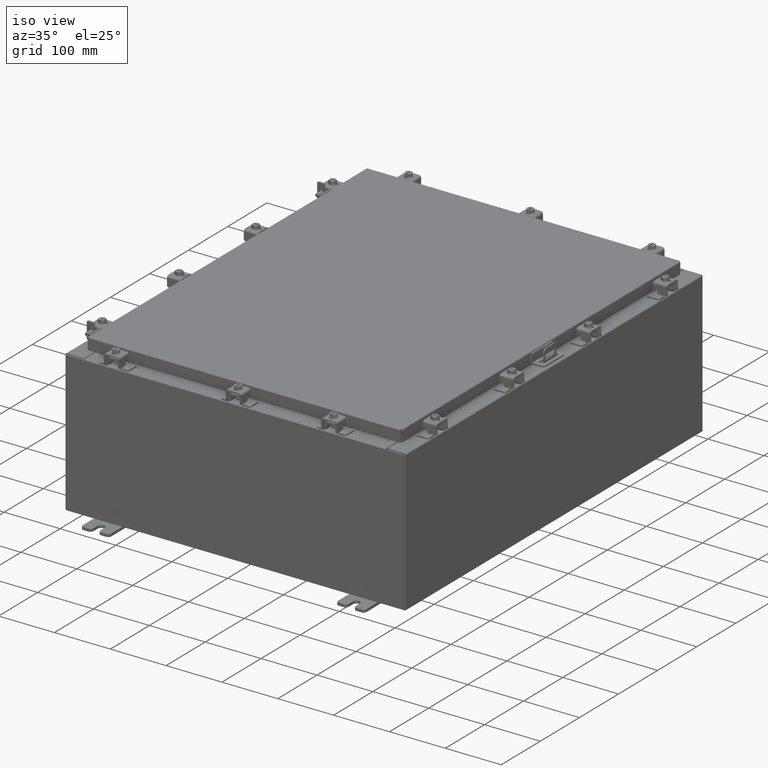
[diagram: clean part render]
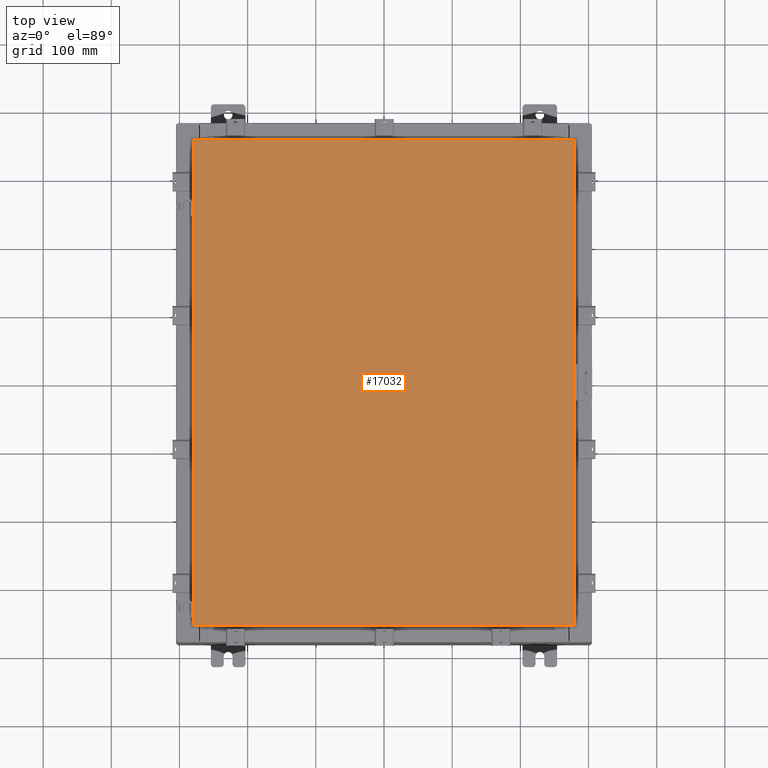
[diagram: tour spotlight — one face highlighted and labeled with its STEP entity id]
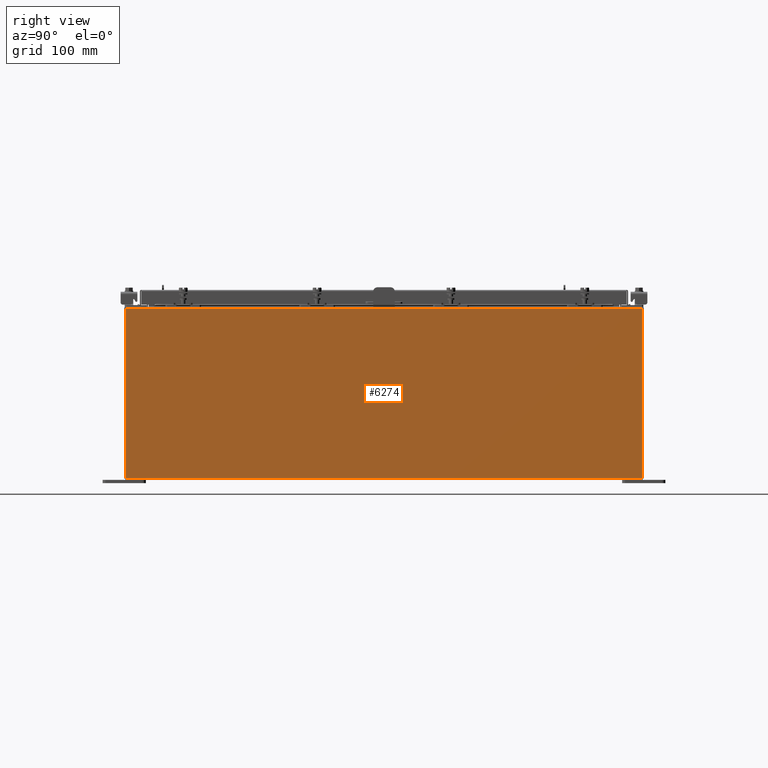
[diagram: tour spotlight — one face highlighted and labeled with its STEP entity id]
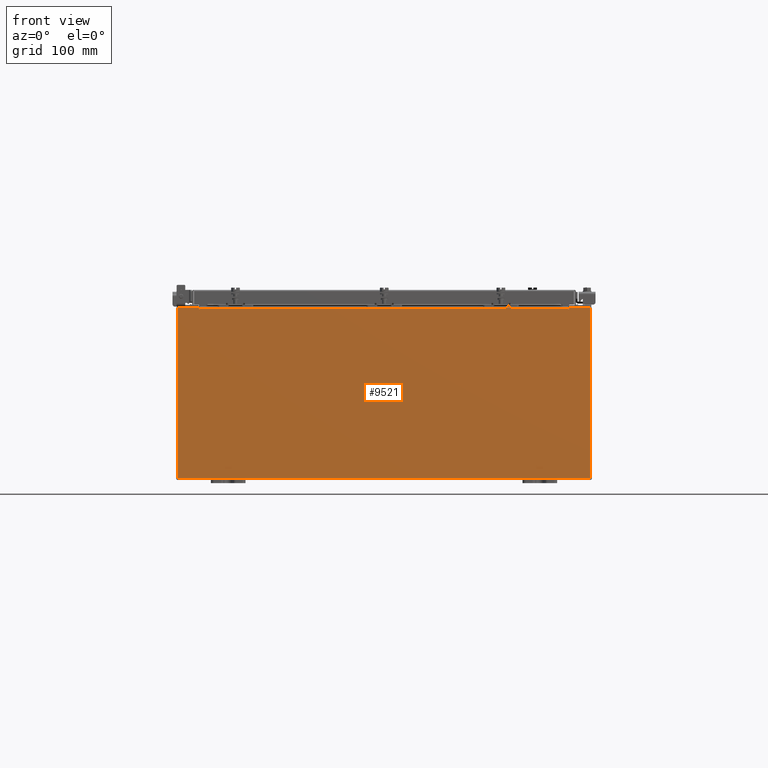
[diagram: tour spotlight — one face highlighted and labeled with its STEP entity id]
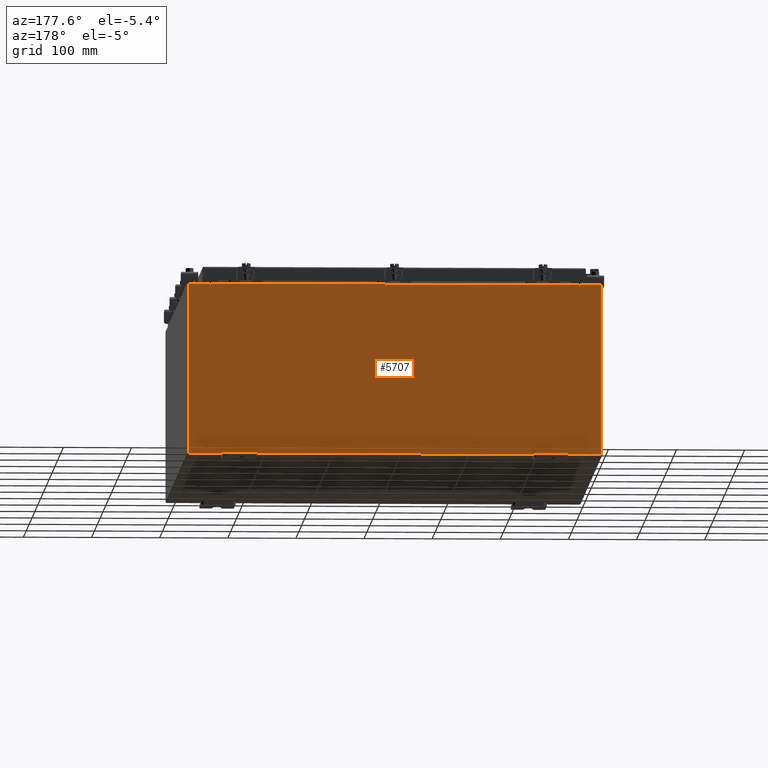
[diagram: tour spotlight — one face highlighted and labeled with its STEP entity id]
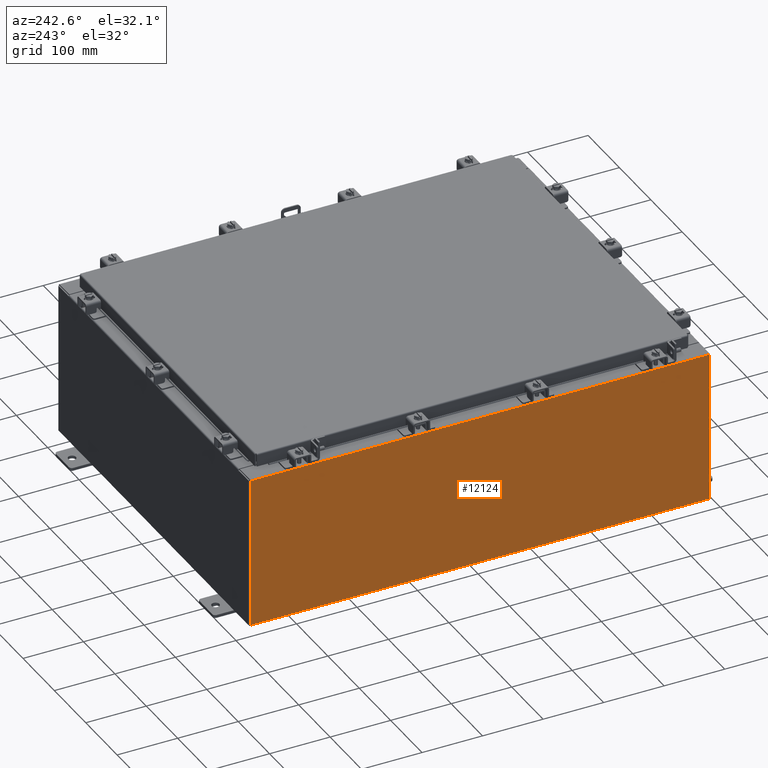
[diagram: tour spotlight — one face highlighted and labeled with its STEP entity id]
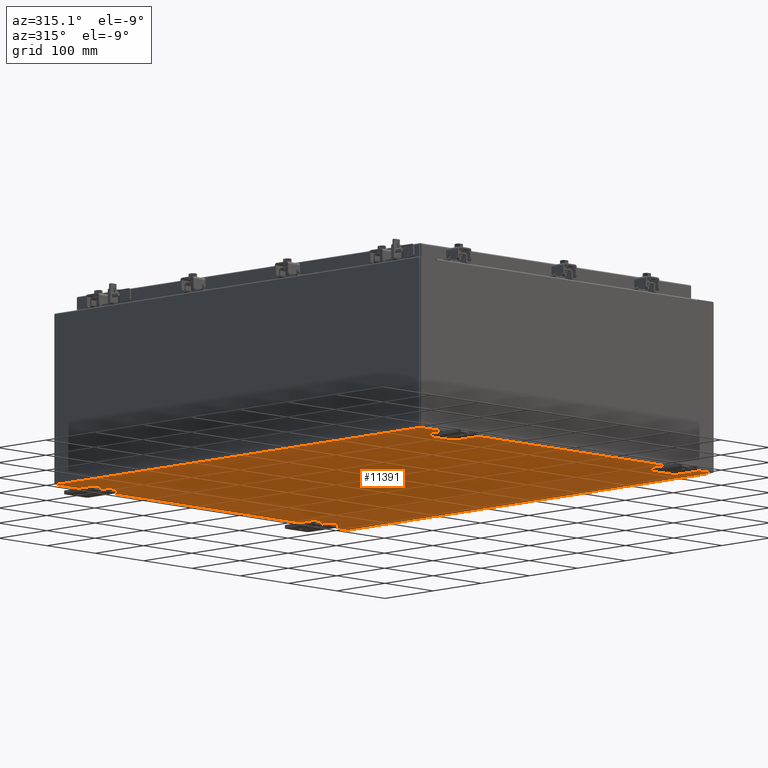
[diagram: tour spotlight — one face highlighted and labeled with its STEP entity id]
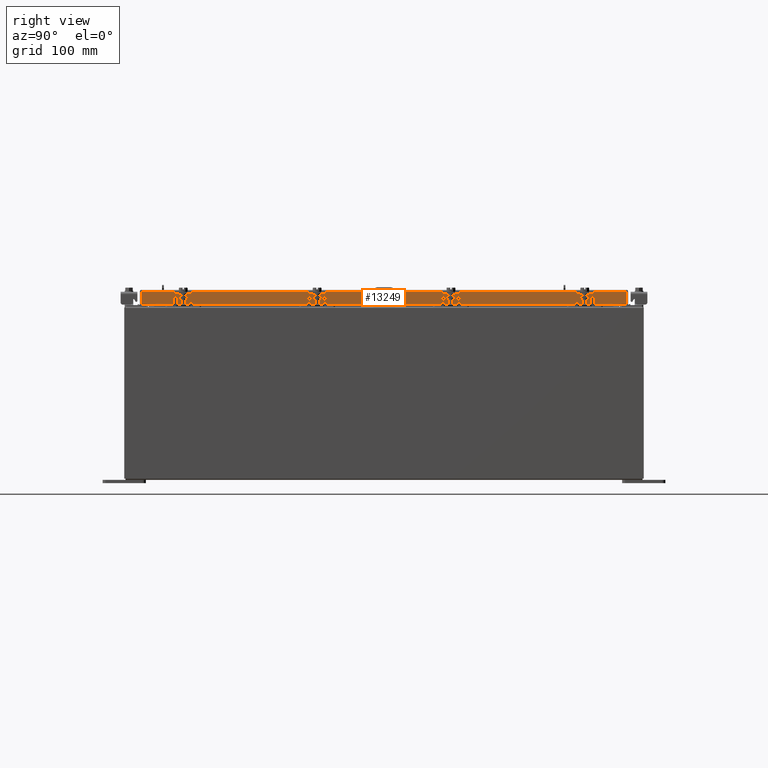
[diagram: tour spotlight — one face highlighted and labeled with its STEP entity id]
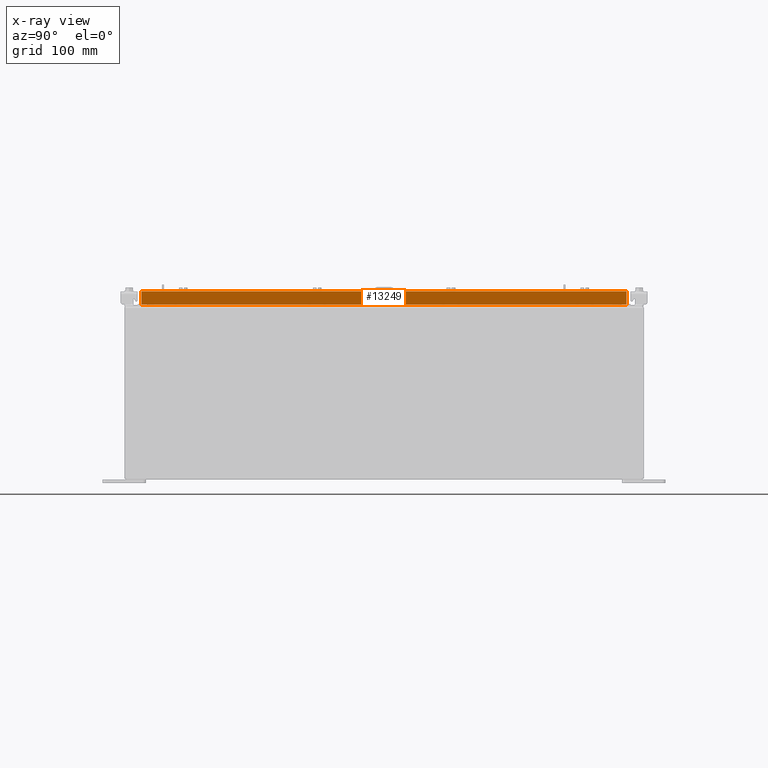
[diagram: x-ray of the same camera — body ghosted, this tour face saturated]
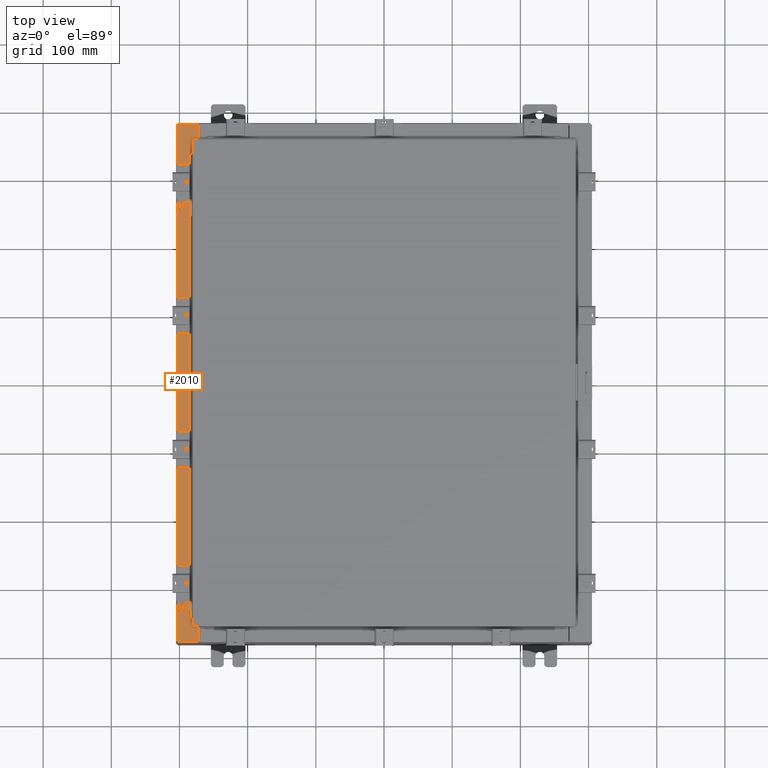
[diagram: tour spotlight — one face highlighted and labeled with its STEP entity id]
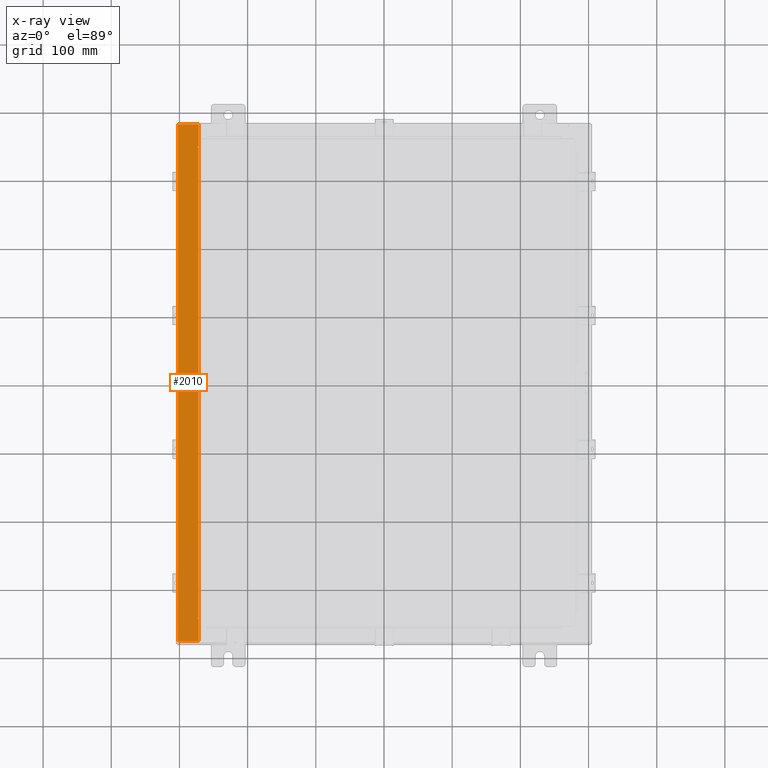
[diagram: x-ray of the same camera — body ghosted, this tour face saturated]
A machine part: a face-by-face anatomy tour. The part has 2272 B-rep faces; the first image is the clean iso view, then the 8 largest visible faces are spotlighted one at a time (largest first), each with its STEP entity span.

Face 1 — top view, entity #17032. In plain terms, the highlighted planar face has unit normal (0, 0, -1).
Definition (entity closure, byte-faithful):
#459 = DIRECTION ( 'NONE',  ( 0.0000000000000000000, -1.000000000000000000, 0.0000000000000000000 ) ) ;
#2598 = CARTESIAN_POINT ( 'NONE',  ( -10.99029999999999600, -14.00629999999999800, -2.219626494852214000E-016 ) ) ;
#3180 = EDGE_LOOP ( 'NONE', ( #3322, #17347, #5760, #13838 ) ) ;
#3322 = ORIENTED_EDGE ( 'NONE', *, *, #20579, .T. ) ;
#3630 = DIRECTION ( 'NONE',  ( 0.0000000000000000000, 0.0000000000000000000, -1.000000000000000000 ) ) ;
#3857 = CARTESIAN_POINT ( 'NONE',  ( 10.99030000000000000, 14.00629999999999800, -2.048885995248197400E-016 ) ) ;
#4446 = DIRECTION ( 'NONE',  ( 1.000000000000000000, -0.0000000000000000000, -0.0000000000000000000 ) ) ;
#5760 = ORIENTED_EDGE ( 'NONE', *, *, #10820, .T. ) ;
#9474 = EDGE_CURVE ( 'NONE', #20600, #12104, #22931, .T. ) ;
#9507 = VECTOR ( 'NONE', #16310, 39.37007874015748100 ) ;
#10820 = EDGE_CURVE ( 'NONE', #11747, #20600, #18465, .T. ) ;
#11251 = CARTESIAN_POINT ( 'NONE',  ( -10.99030000000000000, 14.00630000000000100, -2.048885995248197400E-016 ) ) ;
#11513 = CARTESIAN_POINT ( 'NONE',  ( -10.99030000000000000, 14.00630000000000100, -2.048885995248197400E-016 ) ) ;
#11747 = VERTEX_POINT ( 'NONE', #15502 ) ;
#11920 = AXIS2_PLACEMENT_3D ( 'NONE', #14290, #3630, #16114 ) ;
#11952 = DIRECTION ( 'NONE',  ( 0.0000000000000000000, 1.000000000000000000, 0.0000000000000000000 ) ) ;
#12104 = VERTEX_POINT ( 'NONE', #14783 ) ;
#12368 = EDGE_CURVE ( 'NONE', #14049, #11747, #14778, .T. ) ;
#12515 = PLANE ( 'NONE',  #11920 ) ;
#12599 = LINE ( 'NONE', #2598, #16795 ) ;
#13640 = VECTOR ( 'NONE', #11952, 39.37007874015748100 ) ;
#13838 = ORIENTED_EDGE ( 'NONE', *, *, #9474, .T. ) ;
#14049 = VERTEX_POINT ( 'NONE', #16336 ) ;
#14290 = CARTESIAN_POINT ( 'NONE',  ( 0.0000000000000000000, 0.0000000000000000000, 0.0000000000000000000 ) ) ;
#14778 = LINE ( 'NONE', #22585, #13640 ) ;
#14783 = CARTESIAN_POINT ( 'NONE',  ( -10.99029999999999800, -14.00629999999999800, -2.048885995248197400E-016 ) ) ;
#15502 = CARTESIAN_POINT ( 'NONE',  ( 10.99030000000000000, 14.00629999999999800, -2.048885995248197400E-016 ) ) ;
#16114 = DIRECTION ( 'NONE',  ( -1.000000000000000000, 0.0000000000000000000, -0.0000000000000000000 ) ) ;
#16310 = DIRECTION ( 'NONE',  ( -1.000000000000000000, -0.0000000000000000000, -0.0000000000000000000 ) ) ;
#16336 = CARTESIAN_POINT ( 'NONE',  ( 10.99030000000000000, -14.00629999999999800, -2.048885995248197400E-016 ) ) ;
#16671 = FACE_OUTER_BOUND ( 'NONE', #3180, .T. ) ;
#16795 = VECTOR ( 'NONE', #4446, 39.37007874015748100 ) ;
#17032 = ADVANCED_FACE ( 'NONE', ( #16671 ), #12515, .F. ) ;
#17347 = ORIENTED_EDGE ( 'NONE', *, *, #12368, .T. ) ;
#17691 = VECTOR ( 'NONE', #459, 39.37007874015748100 ) ;
#18465 = LINE ( 'NONE', #3857, #9507 ) ;
#20579 = EDGE_CURVE ( 'NONE', #12104, #14049, #12599, .T. ) ;
#20600 = VERTEX_POINT ( 'NONE', #11513 ) ;
#22585 = CARTESIAN_POINT ( 'NONE',  ( 10.99030000000000000, -14.00629999999999800, -2.048885995248197400E-016 ) ) ;
#22931 = LINE ( 'NONE', #11251, #17691 ) ;

Face 2 — right view, entity #6274. In plain terms, the highlighted planar face has unit normal (-1, 0, 0).
Definition (entity closure, byte-faithful):
#97 = VECTOR ( 'NONE', #15024, 39.37007874015748100 ) ;
#351 = CARTESIAN_POINT ( 'NONE',  ( 11.99999999999999600, -14.92530000000000000, -3.925136619739177700E-014 ) ) ;
#1040 = CARTESIAN_POINT ( 'NONE',  ( 12.00000000000003200, -14.92529999999999800, 9.837600000000001900 ) ) ;
#1900 = EDGE_CURVE ( 'NONE', #8632, #9651, #9154, .T. ) ;
#1926 = CARTESIAN_POINT ( 'NONE',  ( 11.99999999999999600, -14.92530000000000000, 0.01299999999999997500 ) ) ;
#2032 = CARTESIAN_POINT ( 'NONE',  ( 11.99999999999999600, 14.92530000000000000, -3.925136619739177700E-014 ) ) ;
#2417 = AXIS2_PLACEMENT_3D ( 'NONE', #11754, #20636, #2848 ) ;
#2848 = DIRECTION ( 'NONE',  ( 3.523082860860887800E-015, 0.0000000000000000000, 1.000000000000000000 ) ) ;
#3213 = VECTOR ( 'NONE', #16521, 39.37007874015748100 ) ;
#3324 = VECTOR ( 'NONE', #16435, 39.37007874015748100 ) ;
#4808 = ORIENTED_EDGE ( 'NONE', *, *, #1900, .T. ) ;
#6274 = ADVANCED_FACE ( 'NONE', ( #9849 ), #9948, .F. ) ;
#6528 = EDGE_CURVE ( 'NONE', #8632, #10125, #19633, .T. ) ;
#7162 = VERTEX_POINT ( 'NONE', #1040 ) ;
#7294 = DIRECTION ( 'NONE',  ( 2.579385833438731400E-031, -1.000000000000000000, 7.321388497823869400E-017 ) ) ;
#8115 = CARTESIAN_POINT ( 'NONE',  ( 12.00000000000003200, 14.92529999999999800, 9.837599999999994800 ) ) ;
#8511 = LINE ( 'NONE', #351, #3213 ) ;
#8632 = VERTEX_POINT ( 'NONE', #21121 ) ;
#9154 = LINE ( 'NONE', #2032, #3324 ) ;
#9651 = VERTEX_POINT ( 'NONE', #8115 ) ;
#9849 = FACE_OUTER_BOUND ( 'NONE', #19602, .T. ) ;
#9948 = PLANE ( 'NONE',  #2417 ) ;
#10125 = VERTEX_POINT ( 'NONE', #1926 ) ;
#11420 = CARTESIAN_POINT ( 'NONE',  ( 12.00000000000003200, 14.92529999999999800, 9.837599999999994800 ) ) ;
#11754 = CARTESIAN_POINT ( 'NONE',  ( 11.99999999999999600, 0.0000000000000000000, -4.253780798634221600E-014 ) ) ;
#12597 = CARTESIAN_POINT ( 'NONE',  ( 11.99999999999999600, -14.92529999999999800, 0.01299999999999984700 ) ) ;
#15024 = DIRECTION ( 'NONE',  ( -0.0000000000000000000, -1.000000000000000000, -0.0000000000000000000 ) ) ;
#15367 = EDGE_CURVE ( 'NONE', #7162, #10125, #8511, .T. ) ;
#15806 = ORIENTED_EDGE ( 'NONE', *, *, #15367, .T. ) ;
#16195 = ORIENTED_EDGE ( 'NONE', *, *, #6528, .F. ) ;
#16435 = DIRECTION ( 'NONE',  ( 3.523082860860888200E-015, -2.201926788038055100E-016, 1.000000000000000000 ) ) ;
#16521 = DIRECTION ( 'NONE',  ( -3.523082860860888200E-015, -2.201926788038054900E-016, -1.000000000000000000 ) ) ;
#16690 = EDGE_CURVE ( 'NONE', #9651, #7162, #19192, .T. ) ;
#17900 = ORIENTED_EDGE ( 'NONE', *, *, #16690, .T. ) ;
#19072 = VECTOR ( 'NONE', #7294, 39.37007874015748100 ) ;
#19192 = LINE ( 'NONE', #11420, #97 ) ;
#19602 = EDGE_LOOP ( 'NONE', ( #17900, #15806, #16195, #4808 ) ) ;
#19633 = LINE ( 'NONE', #12597, #19072 ) ;
#20636 = DIRECTION ( 'NONE',  ( -1.000000000000000000, 0.0000000000000000000, 3.523082860860887800E-015 ) ) ;
#21121 = CARTESIAN_POINT ( 'NONE',  ( 11.99999999999999600, 14.92529999999999800, 0.01299999999999766100 ) ) ;

Face 3 — front view, entity #9521. In plain terms, the highlighted planar face has unit normal (-0, 1, -0).
Definition (entity closure, byte-faithful):
#7 = DIRECTION ( 'NONE',  ( 1.000000000000000000, 0.0000000000000000000, 0.0000000000000000000 ) ) ;
#120 = EDGE_CURVE ( 'NONE', #6420, #14228, #5009, .T. ) ;
#475 = ORIENTED_EDGE ( 'NONE', *, *, #3072, .F. ) ;
#698 = DIRECTION ( 'NONE',  ( 0.0000000000000000000, -0.0000000000000000000, -1.000000000000000000 ) ) ;
#1128 = CARTESIAN_POINT ( 'NONE',  ( -10.67455000000000200, 0.0000000000000000000, 4.874950000000000100 ) ) ;
#1195 = DIRECTION ( 'NONE',  ( -0.0000000000000000000, 1.000000000000000000, -0.0000000000000000000 ) ) ;
#1309 = ORIENTED_EDGE ( 'NONE', *, *, #120, .T. ) ;
#1412 = ORIENTED_EDGE ( 'NONE', *, *, #4416, .F. ) ;
#1642 = EDGE_CURVE ( 'NONE', #1702, #1821, #9445, .T. ) ;
#1692 = CARTESIAN_POINT ( 'NONE',  ( 10.67455000000000200, 0.0000000000000000000, 4.925300000000000000 ) ) ;
#1702 = VERTEX_POINT ( 'NONE', #1692 ) ;
#1821 = VERTEX_POINT ( 'NONE', #15167 ) ;
#2033 = VERTEX_POINT ( 'NONE', #12820 ) ;
#2645 = AXIS2_PLACEMENT_3D ( 'NONE', #22127, #11473, #698 ) ;
#2677 = VERTEX_POINT ( 'NONE', #10128 ) ;
#3072 = EDGE_CURVE ( 'NONE', #2033, #13731, #7998, .T. ) ;
#3465 = FACE_OUTER_BOUND ( 'NONE', #10725, .T. ) ;
#3504 = CARTESIAN_POINT ( 'NONE',  ( -11.92530000000000000, 0.0000000000000000000, 4.925300000000000000 ) ) ;
#4144 = VECTOR ( 'NONE', #4210, 39.37007874015748100 ) ;
#4210 = DIRECTION ( 'NONE',  ( 0.0000000000000000000, 0.0000000000000000000, 1.000000000000000000 ) ) ;
#4416 = EDGE_CURVE ( 'NONE', #9785, #11579, #8236, .T. ) ;
#4659 = CARTESIAN_POINT ( 'NONE',  ( -10.65587500000000200, 0.0000000000000000000, 4.874950000000000100 ) ) ;
#4992 = CARTESIAN_POINT ( 'NONE',  ( 10.67454999999979000, -0.0000000000000000000, -4.633366117301795800E-013 ) ) ;
#5009 = LINE ( 'NONE', #8147, #9141 ) ;
#5228 = AXIS2_PLACEMENT_3D ( 'NONE', #4659, #17122, #6435 ) ;
#5303 = EDGE_CURVE ( 'NONE', #22618, #2677, #13205, .T. ) ;
#5814 = ORIENTED_EDGE ( 'NONE', *, *, #19306, .T. ) ;
#5822 = CARTESIAN_POINT ( 'NONE',  ( 11.92530000000000000, 0.0000000000000000000, 4.925300000000000000 ) ) ;
#5980 = DIRECTION ( 'NONE',  ( 1.000000000000000000, 0.0000000000000000000, 0.0000000000000000000 ) ) ;
#6420 = VERTEX_POINT ( 'NONE', #10429 ) ;
#6435 = DIRECTION ( 'NONE',  ( 0.0000000000000000000, 0.0000000000000000000, -1.000000000000000000 ) ) ;
#6679 = CARTESIAN_POINT ( 'NONE',  ( -11.92530000000000000, 0.0000000000000000000, 4.925300000000000000 ) ) ;
#6884 = VECTOR ( 'NONE', #20509, 39.37007874015748100 ) ;
#7045 = CARTESIAN_POINT ( 'NONE',  ( -10.67455000000000200, -0.0000000000000000000, 0.0000000000000000000 ) ) ;
#7260 = EDGE_CURVE ( 'NONE', #14228, #7405, #17375, .T. ) ;
#7405 = VERTEX_POINT ( 'NONE', #22995 ) ;
#7454 = VECTOR ( 'NONE', #19230, 39.37007874015748100 ) ;
#7780 = VECTOR ( 'NONE', #7, 39.37007874015748100 ) ;
#7848 = DIRECTION ( 'NONE',  ( -1.000000000000000000, -0.0000000000000000000, -0.0000000000000000000 ) ) ;
#7884 = CARTESIAN_POINT ( 'NONE',  ( -11.92530000000000000, 0.0000000000000000000, -4.925300000000000000 ) ) ;
#7998 = CIRCLE ( 'NONE', #11373, 0.01867499999999949400 ) ;
#8147 = CARTESIAN_POINT ( 'NONE',  ( -11.92530000000000000, 0.0000000000000000000, -4.925300000000000000 ) ) ;
#8236 = LINE ( 'NONE', #20562, #12427 ) ;
#8314 = CARTESIAN_POINT ( 'NONE',  ( 10.63720000000000400, 0.0000000000000000000, 4.874950000000000100 ) ) ;
#8673 = ORIENTED_EDGE ( 'NONE', *, *, #16798, .F. ) ;
#9141 = VECTOR ( 'NONE', #7848, 39.37007874015748100 ) ;
#9445 = LINE ( 'NONE', #3504, #7780 ) ;
#9521 = ADVANCED_FACE ( 'NONE', ( #3465 ), #9676, .F. ) ;
#9639 = ORIENTED_EDGE ( 'NONE', *, *, #1642, .T. ) ;
#9676 = PLANE ( 'NONE',  #2645 ) ;
#9785 = VERTEX_POINT ( 'NONE', #19275 ) ;
#9821 = CARTESIAN_POINT ( 'NONE',  ( -10.63720000000000400, -7.171100983368691200E-016, 4.912300000000000100 ) ) ;
#9871 = ORIENTED_EDGE ( 'NONE', *, *, #5303, .F. ) ;
#9945 = DIRECTION ( 'NONE',  ( 0.0000000000000000000, 0.0000000000000000000, -1.000000000000000000 ) ) ;
#10128 = CARTESIAN_POINT ( 'NONE',  ( -10.67455000000000200, 0.0000000000000000000, 4.925300000000000000 ) ) ;
#10429 = CARTESIAN_POINT ( 'NONE',  ( 11.92530000000000000, 0.0000000000000000000, -4.925300000000000000 ) ) ;
#10725 = EDGE_LOOP ( 'NONE', ( #9871, #8673, #1412, #11068, #12072, #475, #19436, #9639, #15190, #1309, #15658, #5814 ) ) ;
#11068 = ORIENTED_EDGE ( 'NONE', *, *, #17368, .T. ) ;
#11121 = CARTESIAN_POINT ( 'NONE',  ( -10.63720000000000400, -0.0000000000000000000, 4.874950000000000100 ) ) ;
#11259 = CARTESIAN_POINT ( 'NONE',  ( -11.92530000000000000, 0.0000000000000000000, 4.925300000000000000 ) ) ;
#11373 = AXIS2_PLACEMENT_3D ( 'NONE', #17497, #1195, #12267 ) ;
#11473 = DIRECTION ( 'NONE',  ( 0.0000000000000000000, -1.000000000000000000, 0.0000000000000000000 ) ) ;
#11579 = VERTEX_POINT ( 'NONE', #11121 ) ;
#11912 = LINE ( 'NONE', #5822, #20259 ) ;
#12072 = ORIENTED_EDGE ( 'NONE', *, *, #13505, .F. ) ;
#12207 = LINE ( 'NONE', #4992, #7454 ) ;
#12267 = DIRECTION ( 'NONE',  ( 0.0000000000000000000, 0.0000000000000000000, -1.000000000000000000 ) ) ;
#12427 = VECTOR ( 'NONE', #9945, 39.37007874015748100 ) ;
#12820 = CARTESIAN_POINT ( 'NONE',  ( 10.67455000000000200, 0.0000000000000000000, 4.874950000000000100 ) ) ;
#13205 = LINE ( 'NONE', #7045, #17974 ) ;
#13505 = EDGE_CURVE ( 'NONE', #13731, #20227, #17804, .T. ) ;
#13731 = VERTEX_POINT ( 'NONE', #8314 ) ;
#13837 = EDGE_CURVE ( 'NONE', #1702, #2033, #12207, .T. ) ;
#14138 = EDGE_CURVE ( 'NONE', #1821, #6420, #11912, .T. ) ;
#14228 = VERTEX_POINT ( 'NONE', #7884 ) ;
#14779 = DIRECTION ( 'NONE',  ( 0.0000000000000000000, 0.0000000000000000000, -1.000000000000000000 ) ) ;
#15167 = CARTESIAN_POINT ( 'NONE',  ( 11.92530000000000000, 0.0000000000000000000, 4.925300000000000000 ) ) ;
#15190 = ORIENTED_EDGE ( 'NONE', *, *, #14138, .T. ) ;
#15454 = VECTOR ( 'NONE', #5980, 39.37007874015748100 ) ;
#15567 = DIRECTION ( 'NONE',  ( -0.0000000000000000000, -0.0000000000000000000, 1.000000000000000000 ) ) ;
#15658 = ORIENTED_EDGE ( 'NONE', *, *, #7260, .T. ) ;
#16379 = LINE ( 'NONE', #9821, #6884 ) ;
#16679 = CARTESIAN_POINT ( 'NONE',  ( 10.63720000000000400, 0.0000000000000000000, 0.0000000000000000000 ) ) ;
#16798 = EDGE_CURVE ( 'NONE', #11579, #22618, #17523, .T. ) ;
#16810 = VECTOR ( 'NONE', #15567, 39.37007874015748100 ) ;
#17122 = DIRECTION ( 'NONE',  ( -0.0000000000000000000, 1.000000000000000000, -0.0000000000000000000 ) ) ;
#17368 = EDGE_CURVE ( 'NONE', #9785, #20227, #16379, .T. ) ;
#17375 = LINE ( 'NONE', #6679, #16810 ) ;
#17497 = CARTESIAN_POINT ( 'NONE',  ( 10.65587500000000200, 0.0000000000000000000, 4.874950000000000100 ) ) ;
#17523 = CIRCLE ( 'NONE', #5228, 0.01867499999999949400 ) ;
#17804 = LINE ( 'NONE', #16679, #4144 ) ;
#17974 = VECTOR ( 'NONE', #23062, 39.37007874015748100 ) ;
#19105 = CARTESIAN_POINT ( 'NONE',  ( 10.63720000000000400, 0.0000000000000000000, 4.912300000000000100 ) ) ;
#19230 = DIRECTION ( 'NONE',  ( -4.340572780400004900E-014, 0.0000000000000000000, -1.000000000000000000 ) ) ;
#19275 = CARTESIAN_POINT ( 'NONE',  ( -10.63720000000000400, -7.171100983368691200E-016, 4.912300000000000100 ) ) ;
#19306 = EDGE_CURVE ( 'NONE', #7405, #2677, #20183, .T. ) ;
#19436 = ORIENTED_EDGE ( 'NONE', *, *, #13837, .F. ) ;
#20183 = LINE ( 'NONE', #11259, #15454 ) ;
#20227 = VERTEX_POINT ( 'NONE', #19105 ) ;
#20259 = VECTOR ( 'NONE', #14779, 39.37007874015748100 ) ;
#20509 = DIRECTION ( 'NONE',  ( 1.000000000000000000, 0.0000000000000000000, 0.0000000000000000000 ) ) ;
#20562 = CARTESIAN_POINT ( 'NONE',  ( -10.63720000000000400, -0.0000000000000000000, 0.0000000000000000000 ) ) ;
#22127 = CARTESIAN_POINT ( 'NONE',  ( 0.0000000000000000000, 0.0000000000000000000, 0.0000000000000000000 ) ) ;
#22618 = VERTEX_POINT ( 'NONE', #1128 ) ;
#22995 = CARTESIAN_POINT ( 'NONE',  ( -11.92530000000000000, 0.0000000000000000000, 4.925300000000000000 ) ) ;
#23062 = DIRECTION ( 'NONE',  ( 0.0000000000000000000, 0.0000000000000000000, 1.000000000000000000 ) ) ;

Face 4 — auxiliary view, entity #5707. In plain terms, the highlighted planar face has unit normal (0, -1, 0).
Definition (entity closure, byte-faithful):
#263 = EDGE_CURVE ( 'NONE', #13835, #3344, #20578, .T. ) ;
#468 = VECTOR ( 'NONE', #651, 39.37007874015748100 ) ;
#575 = CARTESIAN_POINT ( 'NONE',  ( -11.92530000000000000, 0.0000000000000000000, -4.925300000000000000 ) ) ;
#651 = DIRECTION ( 'NONE',  ( -1.000000000000000000, -0.0000000000000000000, -0.0000000000000000000 ) ) ;
#1103 = ORIENTED_EDGE ( 'NONE', *, *, #19802, .F. ) ;
#1162 = EDGE_CURVE ( 'NONE', #9263, #2900, #16186, .T. ) ;
#1315 = ORIENTED_EDGE ( 'NONE', *, *, #1993, .T. ) ;
#1993 = EDGE_CURVE ( 'NONE', #21340, #19776, #6379, .T. ) ;
#2078 = ORIENTED_EDGE ( 'NONE', *, *, #13070, .F. ) ;
#2263 = ORIENTED_EDGE ( 'NONE', *, *, #22943, .F. ) ;
#2873 = PLANE ( 'NONE',  #4554 ) ;
#2900 = VERTEX_POINT ( 'NONE', #20786 ) ;
#3169 = CARTESIAN_POINT ( 'NONE',  ( 10.67454999999979000, -0.0000000000000000000, -4.633366117301795800E-013 ) ) ;
#3179 = VECTOR ( 'NONE', #15724, 39.37007874015748100 ) ;
#3224 = DIRECTION ( 'NONE',  ( -4.340572780400004900E-014, 0.0000000000000000000, -1.000000000000000000 ) ) ;
#3344 = VERTEX_POINT ( 'NONE', #6080 ) ;
#3436 = CARTESIAN_POINT ( 'NONE',  ( -11.92530000000000000, 0.0000000000000000000, -4.925300000000000000 ) ) ;
#3710 = ORIENTED_EDGE ( 'NONE', *, *, #263, .F. ) ;
#3775 = CARTESIAN_POINT ( 'NONE',  ( 10.63720000000000400, 0.0000000000000000000, 0.0000000000000000000 ) ) ;
#4386 = CARTESIAN_POINT ( 'NONE',  ( 10.65587500000000200, 0.0000000000000000000, 4.874950000000000100 ) ) ;
#4554 = AXIS2_PLACEMENT_3D ( 'NONE', #20658, #15368, #4702 ) ;
#4702 = DIRECTION ( 'NONE',  ( 0.0000000000000000000, -0.0000000000000000000, -1.000000000000000000 ) ) ;
#4813 = CARTESIAN_POINT ( 'NONE',  ( 10.63720000000000400, 0.0000000000000000000, 4.874950000000000100 ) ) ;
#4872 = CIRCLE ( 'NONE', #6098, 0.01867499999999949400 ) ;
#4939 = CARTESIAN_POINT ( 'NONE',  ( -11.92530000000000000, 0.0000000000000000000, 4.925300000000000000 ) ) ;
#5066 = CARTESIAN_POINT ( 'NONE',  ( -11.92530000000000000, 0.0000000000000000000, 4.925300000000000000 ) ) ;
#5707 = ADVANCED_FACE ( 'NONE', ( #19068 ), #2873, .F. ) ;
#6063 = CIRCLE ( 'NONE', #20272, 0.01867499999999949400 ) ;
#6080 = CARTESIAN_POINT ( 'NONE',  ( 10.67455000000000200, 0.0000000000000000000, 4.874950000000000100 ) ) ;
#6098 = AXIS2_PLACEMENT_3D ( 'NONE', #4386, #16845, #6159 ) ;
#6143 = LINE ( 'NONE', #22764, #20920 ) ;
#6159 = DIRECTION ( 'NONE',  ( 0.0000000000000000000, 0.0000000000000000000, -1.000000000000000000 ) ) ;
#6273 = CARTESIAN_POINT ( 'NONE',  ( -10.67455000000000200, 0.0000000000000000000, 4.874950000000000100 ) ) ;
#6379 = LINE ( 'NONE', #6871, #11117 ) ;
#6418 = VECTOR ( 'NONE', #10774, 39.37007874015748100 ) ;
#6755 = DIRECTION ( 'NONE',  ( -0.0000000000000000000, -0.0000000000000000000, 1.000000000000000000 ) ) ;
#6778 = DIRECTION ( 'NONE',  ( 1.000000000000000000, 0.0000000000000000000, 0.0000000000000000000 ) ) ;
#6871 = CARTESIAN_POINT ( 'NONE',  ( -10.63720000000000400, -7.171100983368691200E-016, 4.912300000000000100 ) ) ;
#7115 = CARTESIAN_POINT ( 'NONE',  ( 10.63720000000000400, 0.0000000000000000000, 4.912300000000000100 ) ) ;
#7208 = VERTEX_POINT ( 'NONE', #4813 ) ;
#7583 = CARTESIAN_POINT ( 'NONE',  ( -10.65587500000000200, 0.0000000000000000000, 4.874950000000000100 ) ) ;
#7953 = ORIENTED_EDGE ( 'NONE', *, *, #18000, .T. ) ;
#8092 = CARTESIAN_POINT ( 'NONE',  ( 11.92530000000000000, 0.0000000000000000000, 4.925300000000000000 ) ) ;
#8301 = EDGE_CURVE ( 'NONE', #3344, #7208, #4872, .T. ) ;
#9197 = EDGE_CURVE ( 'NONE', #13835, #19355, #17414, .T. ) ;
#9263 = VERTEX_POINT ( 'NONE', #10554 ) ;
#9363 = DIRECTION ( 'NONE',  ( 0.0000000000000000000, 0.0000000000000000000, -1.000000000000000000 ) ) ;
#9883 = DIRECTION ( 'NONE',  ( 0.0000000000000000000, 0.0000000000000000000, -1.000000000000000000 ) ) ;
#10118 = CARTESIAN_POINT ( 'NONE',  ( -10.67455000000000200, -0.0000000000000000000, 0.0000000000000000000 ) ) ;
#10554 = CARTESIAN_POINT ( 'NONE',  ( -11.92530000000000000, 0.0000000000000000000, 4.925300000000000000 ) ) ;
#10765 = VERTEX_POINT ( 'NONE', #16020 ) ;
#10774 = DIRECTION ( 'NONE',  ( 0.0000000000000000000, 0.0000000000000000000, -1.000000000000000000 ) ) ;
#11019 = VERTEX_POINT ( 'NONE', #20262 ) ;
#11038 = LINE ( 'NONE', #8092, #15234 ) ;
#11117 = VECTOR ( 'NONE', #19270, 39.37007874015748100 ) ;
#11386 = VECTOR ( 'NONE', #11930, 39.37007874015748100 ) ;
#11657 = VECTOR ( 'NONE', #3224, 39.37007874015748100 ) ;
#11707 = LINE ( 'NONE', #17884, #6418 ) ;
#11799 = LINE ( 'NONE', #3775, #12370 ) ;
#11930 = DIRECTION ( 'NONE',  ( 0.0000000000000000000, 0.0000000000000000000, 1.000000000000000000 ) ) ;
#12370 = VECTOR ( 'NONE', #14436, 39.37007874015748100 ) ;
#12975 = ORIENTED_EDGE ( 'NONE', *, *, #8301, .F. ) ;
#13070 = EDGE_CURVE ( 'NONE', #21344, #2900, #17259, .T. ) ;
#13835 = VERTEX_POINT ( 'NONE', #20926 ) ;
#14365 = ORIENTED_EDGE ( 'NONE', *, *, #9197, .T. ) ;
#14436 = DIRECTION ( 'NONE',  ( 0.0000000000000000000, 0.0000000000000000000, 1.000000000000000000 ) ) ;
#14813 = LINE ( 'NONE', #575, #468 ) ;
#14831 = ORIENTED_EDGE ( 'NONE', *, *, #17154, .F. ) ;
#15234 = VECTOR ( 'NONE', #9883, 39.37007874015748100 ) ;
#15368 = DIRECTION ( 'NONE',  ( 0.0000000000000000000, -1.000000000000000000, 0.0000000000000000000 ) ) ;
#15724 = DIRECTION ( 'NONE',  ( 1.000000000000000000, 0.0000000000000000000, 0.0000000000000000000 ) ) ;
#15756 = ORIENTED_EDGE ( 'NONE', *, *, #22453, .T. ) ;
#16020 = CARTESIAN_POINT ( 'NONE',  ( 11.92530000000000000, 0.0000000000000000000, -4.925300000000000000 ) ) ;
#16186 = LINE ( 'NONE', #4939, #21473 ) ;
#16845 = DIRECTION ( 'NONE',  ( -0.0000000000000000000, 1.000000000000000000, -0.0000000000000000000 ) ) ;
#16957 = CARTESIAN_POINT ( 'NONE',  ( -10.63720000000000400, -7.171100983368691200E-016, 4.912300000000000100 ) ) ;
#17154 = EDGE_CURVE ( 'NONE', #11019, #21344, #6063, .T. ) ;
#17259 = LINE ( 'NONE', #10118, #11386 ) ;
#17414 = LINE ( 'NONE', #5066, #3179 ) ;
#17528 = ORIENTED_EDGE ( 'NONE', *, *, #1162, .T. ) ;
#17884 = CARTESIAN_POINT ( 'NONE',  ( -10.63720000000000400, -0.0000000000000000000, 0.0000000000000000000 ) ) ;
#18000 = EDGE_CURVE ( 'NONE', #19355, #10765, #11038, .T. ) ;
#18253 = VERTEX_POINT ( 'NONE', #3436 ) ;
#19068 = FACE_OUTER_BOUND ( 'NONE', #22933, .T. ) ;
#19270 = DIRECTION ( 'NONE',  ( 1.000000000000000000, 0.0000000000000000000, 0.0000000000000000000 ) ) ;
#19355 = VERTEX_POINT ( 'NONE', #20293 ) ;
#19776 = VERTEX_POINT ( 'NONE', #7115 ) ;
#19802 = EDGE_CURVE ( 'NONE', #7208, #19776, #11799, .T. ) ;
#20048 = DIRECTION ( 'NONE',  ( -0.0000000000000000000, 1.000000000000000000, -0.0000000000000000000 ) ) ;
#20262 = CARTESIAN_POINT ( 'NONE',  ( -10.63720000000000400, -0.0000000000000000000, 4.874950000000000100 ) ) ;
#20272 = AXIS2_PLACEMENT_3D ( 'NONE', #7583, #20048, #9363 ) ;
#20293 = CARTESIAN_POINT ( 'NONE',  ( 11.92530000000000000, 0.0000000000000000000, 4.925300000000000000 ) ) ;
#20578 = LINE ( 'NONE', #3169, #11657 ) ;
#20658 = CARTESIAN_POINT ( 'NONE',  ( 0.0000000000000000000, 0.0000000000000000000, 0.0000000000000000000 ) ) ;
#20786 = CARTESIAN_POINT ( 'NONE',  ( -10.67455000000000200, 0.0000000000000000000, 4.925300000000000000 ) ) ;
#20920 = VECTOR ( 'NONE', #6755, 39.37007874015748100 ) ;
#20926 = CARTESIAN_POINT ( 'NONE',  ( 10.67455000000000200, 0.0000000000000000000, 4.925300000000000000 ) ) ;
#21340 = VERTEX_POINT ( 'NONE', #16957 ) ;
#21344 = VERTEX_POINT ( 'NONE', #6273 ) ;
#21473 = VECTOR ( 'NONE', #6778, 39.37007874015748100 ) ;
#22349 = ORIENTED_EDGE ( 'NONE', *, *, #22735, .T. ) ;
#22453 = EDGE_CURVE ( 'NONE', #10765, #18253, #14813, .T. ) ;
#22735 = EDGE_CURVE ( 'NONE', #18253, #9263, #6143, .T. ) ;
#22764 = CARTESIAN_POINT ( 'NONE',  ( -11.92530000000000000, 0.0000000000000000000, 4.925300000000000000 ) ) ;
#22933 = EDGE_LOOP ( 'NONE', ( #2078, #14831, #2263, #1315, #1103, #12975, #3710, #14365, #7953, #15756, #22349, #17528 ) ) ;
#22943 = EDGE_CURVE ( 'NONE', #21340, #11019, #11707, .T. ) ;

Face 5 — auxiliary view, entity #12124. In plain terms, the highlighted planar face has unit normal (1, 0, 0).
Definition (entity closure, byte-faithful):
#264 = CARTESIAN_POINT ( 'NONE',  ( -12.00000000000000500, 14.92530000000000000, 0.01299999999999984300 ) ) ;
#471 = CARTESIAN_POINT ( 'NONE',  ( -12.00000000000000500, 0.0000000000000000000, -4.253780798634224700E-014 ) ) ;
#706 = EDGE_CURVE ( 'NONE', #22859, #15334, #11444, .T. ) ;
#1808 = CARTESIAN_POINT ( 'NONE',  ( -12.00000000000000500, -14.92530000000000000, -4.253780798634224700E-014 ) ) ;
#2333 = PLANE ( 'NONE',  #8269 ) ;
#2471 = CARTESIAN_POINT ( 'NONE',  ( -12.00000000000000500, 14.92530000000000000, 0.01299999999999984700 ) ) ;
#2632 = ORIENTED_EDGE ( 'NONE', *, *, #13409, .T. ) ;
#2652 = CARTESIAN_POINT ( 'NONE',  ( -12.00000000000000500, -14.92530000000000000, 0.01299999999999984700 ) ) ;
#2735 = EDGE_CURVE ( 'NONE', #10372, #22147, #16688, .T. ) ;
#3695 = VECTOR ( 'NONE', #13260, 39.37007874015748100 ) ;
#4066 = CARTESIAN_POINT ( 'NONE',  ( -12.00000000000004100, -14.92530000000000000, 9.837599999999998300 ) ) ;
#7085 = CARTESIAN_POINT ( 'NONE',  ( -12.00000000000000500, 14.92530000000000000, -4.253780798634224700E-014 ) ) ;
#7745 = EDGE_CURVE ( 'NONE', #10372, #15334, #23153, .T. ) ;
#8269 = AXIS2_PLACEMENT_3D ( 'NONE', #471, #12979, #14855 ) ;
#10230 = DIRECTION ( 'NONE',  ( -3.523082860860888200E-015, 0.0000000000000000000, 1.000000000000000000 ) ) ;
#10372 = VERTEX_POINT ( 'NONE', #2652 ) ;
#11444 = LINE ( 'NONE', #7085, #15650 ) ;
#11933 = VECTOR ( 'NONE', #10230, 39.37007874015748100 ) ;
#12124 = ADVANCED_FACE ( 'NONE', ( #13353 ), #2333, .F. ) ;
#12916 = DIRECTION ( 'NONE',  ( 0.0000000000000000000, 1.000000000000000000, 0.0000000000000000000 ) ) ;
#12979 = DIRECTION ( 'NONE',  ( 1.000000000000000000, 0.0000000000000000000, 3.523082860860887800E-015 ) ) ;
#13260 = DIRECTION ( 'NONE',  ( -0.0000000000000000000, 1.000000000000000000, -0.0000000000000000000 ) ) ;
#13353 = FACE_OUTER_BOUND ( 'NONE', #14108, .T. ) ;
#13409 = EDGE_CURVE ( 'NONE', #22147, #22859, #14164, .T. ) ;
#14108 = EDGE_LOOP ( 'NONE', ( #2632, #14631, #16445, #14920 ) ) ;
#14164 = LINE ( 'NONE', #4066, #18906 ) ;
#14631 = ORIENTED_EDGE ( 'NONE', *, *, #706, .T. ) ;
#14855 = DIRECTION ( 'NONE',  ( 3.523082860860887800E-015, 0.0000000000000000000, -1.000000000000000000 ) ) ;
#14920 = ORIENTED_EDGE ( 'NONE', *, *, #2735, .T. ) ;
#15334 = VERTEX_POINT ( 'NONE', #264 ) ;
#15650 = VECTOR ( 'NONE', #21497, 39.37007874015748100 ) ;
#16445 = ORIENTED_EDGE ( 'NONE', *, *, #7745, .F. ) ;
#16688 = LINE ( 'NONE', #1808, #11933 ) ;
#18906 = VECTOR ( 'NONE', #12916, 39.37007874015748100 ) ;
#20816 = CARTESIAN_POINT ( 'NONE',  ( -12.00000000000004100, -14.92530000000000000, 9.837599999999998300 ) ) ;
#21497 = DIRECTION ( 'NONE',  ( 3.523082860860888200E-015, 0.0000000000000000000, -1.000000000000000000 ) ) ;
#22147 = VERTEX_POINT ( 'NONE', #20816 ) ;
#22859 = VERTEX_POINT ( 'NONE', #23069 ) ;
#23069 = CARTESIAN_POINT ( 'NONE',  ( -12.00000000000004100, 14.92530000000000000, 9.837599999999998300 ) ) ;
#23153 = LINE ( 'NONE', #2471, #3695 ) ;

Face 6 — auxiliary view, entity #11391. In plain terms, the highlighted planar face has unit normal (0, 0, -1).
Definition (entity closure, byte-faithful):
#682 = LINE ( 'NONE', #10207, #19204 ) ;
#941 = CARTESIAN_POINT ( 'NONE',  ( -12.00000000000000500, -14.92530000000000000, -0.07470000000000000300 ) ) ;
#958 = LINE ( 'NONE', #14410, #19480 ) ;
#4945 = DIRECTION ( 'NONE',  ( -0.0000000000000000000, -1.000000000000000000, 8.208677865577646300E-017 ) ) ;
#5268 = CARTESIAN_POINT ( 'NONE',  ( -11.91230000000000500, 14.92530000000000000, -0.07470000000000000300 ) ) ;
#5314 = CARTESIAN_POINT ( 'NONE',  ( 0.0000000000000000000, 0.0000000000000000000, -0.07470000000000000300 ) ) ;
#5778 = DIRECTION ( 'NONE',  ( -1.000000000000000000, -0.0000000000000000000, -0.0000000000000000000 ) ) ;
#6487 = CARTESIAN_POINT ( 'NONE',  ( -11.91230000000000500, -14.92530000000000000, -0.07469999999999994700 ) ) ;
#7081 = DIRECTION ( 'NONE',  ( 0.0000000000000000000, 0.0000000000000000000, -1.000000000000000000 ) ) ;
#7626 = CARTESIAN_POINT ( 'NONE',  ( 11.91229999999999700, 14.92530000000000000, -0.07470000000000226500 ) ) ;
#7838 = EDGE_CURVE ( 'NONE', #9689, #16317, #16232, .T. ) ;
#8660 = LINE ( 'NONE', #9314, #22840 ) ;
#9314 = CARTESIAN_POINT ( 'NONE',  ( -11.91230000000000500, -14.92530000000000000, -0.07469999999999994700 ) ) ;
#9391 = DIRECTION ( 'NONE',  ( -0.0000000000000000000, 1.000000000000000000, -0.0000000000000000000 ) ) ;
#9689 = VERTEX_POINT ( 'NONE', #6487 ) ;
#10207 = CARTESIAN_POINT ( 'NONE',  ( 11.91229999999999700, 14.92530000000000000, -0.07470000000000226500 ) ) ;
#10380 = ORIENTED_EDGE ( 'NONE', *, *, #13144, .T. ) ;
#11391 = ADVANCED_FACE ( 'NONE', ( #13118 ), #15990, .T. ) ;
#11582 = EDGE_CURVE ( 'NONE', #9689, #17671, #8660, .T. ) ;
#12290 = ORIENTED_EDGE ( 'NONE', *, *, #13398, .F. ) ;
#12709 = EDGE_LOOP ( 'NONE', ( #22517, #19996, #12290, #10380 ) ) ;
#13118 = FACE_OUTER_BOUND ( 'NONE', #12709, .T. ) ;
#13144 = EDGE_CURVE ( 'NONE', #20455, #16317, #682, .T. ) ;
#13398 = EDGE_CURVE ( 'NONE', #20455, #17671, #958, .T. ) ;
#14410 = CARTESIAN_POINT ( 'NONE',  ( -12.00000000000000500, 14.92530000000000000, -0.07470000000000000300 ) ) ;
#15299 = DIRECTION ( 'NONE',  ( 1.000000000000000000, 0.0000000000000000000, 0.0000000000000000000 ) ) ;
#15584 = AXIS2_PLACEMENT_3D ( 'NONE', #5314, #7081, #19566 ) ;
#15990 = PLANE ( 'NONE',  #15584 ) ;
#16232 = LINE ( 'NONE', #941, #20387 ) ;
#16317 = VERTEX_POINT ( 'NONE', #22864 ) ;
#17671 = VERTEX_POINT ( 'NONE', #5268 ) ;
#19204 = VECTOR ( 'NONE', #4945, 39.37007874015748100 ) ;
#19480 = VECTOR ( 'NONE', #5778, 39.37007874015748100 ) ;
#19566 = DIRECTION ( 'NONE',  ( -1.000000000000000000, 0.0000000000000000000, -0.0000000000000000000 ) ) ;
#19996 = ORIENTED_EDGE ( 'NONE', *, *, #11582, .T. ) ;
#20387 = VECTOR ( 'NONE', #15299, 39.37007874015748100 ) ;
#20455 = VERTEX_POINT ( 'NONE', #7626 ) ;
#22517 = ORIENTED_EDGE ( 'NONE', *, *, #7838, .F. ) ;
#22840 = VECTOR ( 'NONE', #9391, 39.37007874015748100 ) ;
#22864 = CARTESIAN_POINT ( 'NONE',  ( 11.91229999999998800, -14.92530000000000000, -0.07470000000000000300 ) ) ;

Face 7 — right view, entity #13249. An x-ray twin of the same camera follows (body ghosted, this face saturated) — the face is partly hidden behind the body. In plain terms, the highlighted planar face has unit normal (1, 0, 0).
Definition (entity closure, byte-faithful):
#797 = CARTESIAN_POINT ( 'NONE',  ( 11.07799999999999900, -14.00515786437626900, -0.07469999999999978000 ) ) ;
#1392 = EDGE_CURVE ( 'NONE', #19476, #18297, #17009, .T. ) ;
#1435 = EDGE_LOOP ( 'NONE', ( #6969, #8111, #11946, #16283, #22698, #14731 ) ) ;
#1637 = AXIS2_PLACEMENT_3D ( 'NONE', #5174, #21198, #10515 ) ;
#1694 = DIRECTION ( 'NONE',  ( 0.0000000000000000000, -1.000000000000000000, 0.0000000000000000000 ) ) ;
#4733 = VECTOR ( 'NONE', #13742, 39.37007874015748100 ) ;
#5174 = CARTESIAN_POINT ( 'NONE',  ( 11.07799999999999900, 0.0000000000000000000, 3.148837674004379000E-014 ) ) ;
#6094 = CARTESIAN_POINT ( 'NONE',  ( 11.07799999999999200, -13.25515786437626400, -0.8500000000000018700 ) ) ;
#6315 = CARTESIAN_POINT ( 'NONE',  ( 11.07800000000000300, -14.00515786437626400, -0.8499999999999996400 ) ) ;
#6880 = DIRECTION ( 'NONE',  ( 0.0000000000000000000, -1.000000000000000000, 0.0000000000000000000 ) ) ;
#6969 = ORIENTED_EDGE ( 'NONE', *, *, #16713, .F. ) ;
#7158 = CARTESIAN_POINT ( 'NONE',  ( 11.07799999999999200, 13.25515786437627100, -0.8500000000000018700 ) ) ;
#8018 = LINE ( 'NONE', #19430, #22215 ) ;
#8111 = ORIENTED_EDGE ( 'NONE', *, *, #15883, .F. ) ;
#8724 = PLANE ( 'NONE',  #1637 ) ;
#8899 = LINE ( 'NONE', #17187, #4733 ) ;
#9080 = VERTEX_POINT ( 'NONE', #22452 ) ;
#9131 = LINE ( 'NONE', #797, #18073 ) ;
#9764 = DIRECTION ( 'NONE',  ( -2.818880942772360100E-015, -6.982962677686265900E-015, 1.000000000000000000 ) ) ;
#9807 = EDGE_CURVE ( 'NONE', #16388, #17882, #12087, .T. ) ;
#10515 = DIRECTION ( 'NONE',  ( 2.818880942772360100E-015, 0.0000000000000000000, -1.000000000000000000 ) ) ;
#11946 = ORIENTED_EDGE ( 'NONE', *, *, #9807, .F. ) ;
#12087 = LINE ( 'NONE', #17570, #16823 ) ;
#12231 = CARTESIAN_POINT ( 'NONE',  ( 11.07799999999999900, 14.00515786437626900, 1.292858714020875700E-013 ) ) ;
#12373 = EDGE_CURVE ( 'NONE', #19476, #16388, #8899, .T. ) ;
#12813 = VECTOR ( 'NONE', #19483, 39.37007874015748100 ) ;
#13249 = ADVANCED_FACE ( 'NONE', ( #22779 ), #8724, .T. ) ;
#13264 = EDGE_CURVE ( 'NONE', #18297, #9080, #8018, .T. ) ;
#13582 = CARTESIAN_POINT ( 'NONE',  ( 11.07800000000000300, 14.00515786437627200, -0.8499999999999996400 ) ) ;
#13625 = VECTOR ( 'NONE', #1694, 39.37007874015748100 ) ;
#13742 = DIRECTION ( 'NONE',  ( 0.0000000000000000000, -1.000000000000000000, 0.0000000000000000000 ) ) ;
#14111 = DIRECTION ( 'NONE',  ( 0.0000000000000000000, -1.000000000000000000, 0.0000000000000000000 ) ) ;
#14231 = CARTESIAN_POINT ( 'NONE',  ( 11.07800000000000300, -14.09399999999999900, -0.8499999999999996400 ) ) ;
#14731 = ORIENTED_EDGE ( 'NONE', *, *, #13264, .T. ) ;
#14992 = VERTEX_POINT ( 'NONE', #6315 ) ;
#15883 = EDGE_CURVE ( 'NONE', #17882, #14992, #23080, .T. ) ;
#16283 = ORIENTED_EDGE ( 'NONE', *, *, #12373, .F. ) ;
#16388 = VERTEX_POINT ( 'NONE', #7158 ) ;
#16713 = EDGE_CURVE ( 'NONE', #14992, #9080, #9131, .T. ) ;
#16823 = VECTOR ( 'NONE', #6880, 39.37007874015748100 ) ;
#17009 = LINE ( 'NONE', #12231, #12813 ) ;
#17187 = CARTESIAN_POINT ( 'NONE',  ( 11.07800000000000300, -14.09399999999999900, -0.8499999999999996400 ) ) ;
#17570 = CARTESIAN_POINT ( 'NONE',  ( 11.07799999999999200, 13.25515786437627200, -0.8500000000000018700 ) ) ;
#17882 = VERTEX_POINT ( 'NONE', #6094 ) ;
#18073 = VECTOR ( 'NONE', #9764, 39.37007874015748100 ) ;
#18297 = VERTEX_POINT ( 'NONE', #19641 ) ;
#19430 = CARTESIAN_POINT ( 'NONE',  ( 11.07799999999999900, 0.0000000000000000000, -0.08770000000000007000 ) ) ;
#19476 = VERTEX_POINT ( 'NONE', #13582 ) ;
#19483 = DIRECTION ( 'NONE',  ( -2.818880942772360100E-015, -6.982962677686265900E-015, 1.000000000000000000 ) ) ;
#19641 = CARTESIAN_POINT ( 'NONE',  ( 11.07799999999999900, 14.00515786437626500, -0.08770000000000007000 ) ) ;
#21198 = DIRECTION ( 'NONE',  ( 1.000000000000000000, 0.0000000000000000000, 2.818880942772360100E-015 ) ) ;
#22215 = VECTOR ( 'NONE', #14111, 39.37007874015748100 ) ;
#22452 = CARTESIAN_POINT ( 'NONE',  ( 11.07799999999999900, -14.00515786437626900, -0.08770000000000007000 ) ) ;
#22698 = ORIENTED_EDGE ( 'NONE', *, *, #1392, .T. ) ;
#22779 = FACE_OUTER_BOUND ( 'NONE', #1435, .T. ) ;
#23080 = LINE ( 'NONE', #14231, #13625 ) ;

Face 8 — top view, entity #2010. An x-ray twin of the same camera follows (body ghosted, this face saturated) — the face is partly hidden behind the body. In plain terms, the highlighted planar face has unit normal (0, 0, -1).
Definition (entity closure, byte-faithful):
#244 = ORIENTED_EDGE ( 'NONE', *, *, #11588, .F. ) ;
#452 = LINE ( 'NONE', #17243, #9463 ) ;
#854 = VERTEX_POINT ( 'NONE', #18488 ) ;
#977 = EDGE_CURVE ( 'NONE', #20273, #1750, #452, .T. ) ;
#1258 = CARTESIAN_POINT ( 'NONE',  ( -10.75005000000004300, 13.59374999999999800, 9.925300000000007100 ) ) ;
#1550 = CARTESIAN_POINT ( 'NONE',  ( -10.75005000000004300, -13.61242499999998600, 9.925300000000007100 ) ) ;
#1750 = VERTEX_POINT ( 'NONE', #12221 ) ;
#1775 = ORIENTED_EDGE ( 'NONE', *, *, #18959, .T. ) ;
#1796 = CARTESIAN_POINT ( 'NONE',  ( -10.69970000000004100, -5.494975343389765900E-030, 9.925300000000007100 ) ) ;
#1988 = EDGE_CURVE ( 'NONE', #15453, #8892, #2149, .T. ) ;
#2010 = ADVANCED_FACE ( 'NONE', ( #10550 ), #5106, .F. ) ;
#2047 = VECTOR ( 'NONE', #9543, 39.37007874015748100 ) ;
#2119 = CARTESIAN_POINT ( 'NONE',  ( -11.91230000000003900, 14.92530000000000000, 9.925299999999998200 ) ) ;
#2149 = LINE ( 'NONE', #15690, #15887 ) ;
#2485 = LINE ( 'NONE', #22528, #16199 ) ;
#2634 = VERTEX_POINT ( 'NONE', #1258 ) ;
#2765 = CARTESIAN_POINT ( 'NONE',  ( -10.69970000000004100, 13.63109999999999600, 9.925300000000007100 ) ) ;
#3354 = DIRECTION ( 'NONE',  ( -0.0000000000000000000, -1.000000000000000000, -0.0000000000000000000 ) ) ;
#3415 = DIRECTION ( 'NONE',  ( 1.000000000000000000, 0.0000000000000000000, 0.0000000000000000000 ) ) ;
#3640 = CIRCLE ( 'NONE', #12299, 0.01867499999999949400 ) ;
#3665 = DIRECTION ( 'NONE',  ( -5.135634964896008400E-031, 1.000000000000000000, -3.663126390350707800E-045 ) ) ;
#3701 = EDGE_CURVE ( 'NONE', #16622, #14056, #7976, .T. ) ;
#3880 = CARTESIAN_POINT ( 'NONE',  ( -10.75005000000004300, 13.63109999999999600, 9.925300000000007100 ) ) ;
#3893 = DIRECTION ( 'NONE',  ( -1.000000000000000000, 0.0000000000000000000, -7.132762385546384700E-015 ) ) ;
#3937 = VECTOR ( 'NONE', #7612, 39.37007874015748100 ) ;
#3971 = CIRCLE ( 'NONE', #15009, 0.01867499999999949400 ) ;
#4497 = CARTESIAN_POINT ( 'NONE',  ( -10.75005000000004300, -13.63109999999998600, 9.925300000000007100 ) ) ;
#5106 = PLANE ( 'NONE',  #10480 ) ;
#5714 = CARTESIAN_POINT ( 'NONE',  ( -10.69970000000004100, -13.63109999999998400, 9.925300000000007100 ) ) ;
#5762 = DIRECTION ( 'NONE',  ( 7.132762385546384700E-015, 0.0000000000000000000, -1.000000000000000000 ) ) ;
#5830 = LINE ( 'NONE', #1796, #23058 ) ;
#6120 = CARTESIAN_POINT ( 'NONE',  ( -7.105562016127570400E-014, -14.92530000000000000, 9.925300000000083500 ) ) ;
#6165 = VECTOR ( 'NONE', #9687, 39.37007874015748100 ) ;
#7005 = DIRECTION ( 'NONE',  ( -1.000000000000000000, 0.0000000000000000000, 0.0000000000000000000 ) ) ;
#7082 = VERTEX_POINT ( 'NONE', #4497 ) ;
#7134 = DIRECTION ( 'NONE',  ( -5.135634964896008400E-031, 1.000000000000000000, -3.663126390350707800E-045 ) ) ;
#7367 = LINE ( 'NONE', #14223, #11550 ) ;
#7394 = LINE ( 'NONE', #7769, #2047 ) ;
#7612 = DIRECTION ( 'NONE',  ( 1.000000000000000000, 0.0000000000000000000, 0.0000000000000000000 ) ) ;
#7769 = CARTESIAN_POINT ( 'NONE',  ( -10.75005000000004300, -13.63109999999998600, 9.925300000000007100 ) ) ;
#7976 = LINE ( 'NONE', #2765, #17493 ) ;
#8499 = CARTESIAN_POINT ( 'NONE',  ( -10.71270000000004300, 13.59374999999999800, 9.925300000000007100 ) ) ;
#8562 = CARTESIAN_POINT ( 'NONE',  ( -10.75005000000004300, 13.61242499999999600, 9.925300000000007100 ) ) ;
#8892 = VERTEX_POINT ( 'NONE', #2119 ) ;
#9172 = ORIENTED_EDGE ( 'NONE', *, *, #18481, .F. ) ;
#9463 = VECTOR ( 'NONE', #3354, 39.37007874015748100 ) ;
#9543 = DIRECTION ( 'NONE',  ( 1.000000000000000000, 0.0000000000000000000, 0.0000000000000000000 ) ) ;
#9579 = EDGE_LOOP ( 'NONE', ( #9820, #1775, #23106, #13729, #22947, #18587, #9172, #12383, #18287, #14548, #244, #13252 ) ) ;
#9687 = DIRECTION ( 'NONE',  ( 1.000000000000000000, 0.0000000000000000000, 7.132762385546384700E-015 ) ) ;
#9810 = VERTEX_POINT ( 'NONE', #12193 ) ;
#9820 = ORIENTED_EDGE ( 'NONE', *, *, #3701, .F. ) ;
#10022 = DIRECTION ( 'NONE',  ( -1.000000000000000000, 0.0000000000000000000, 0.0000000000000000000 ) ) ;
#10032 = VERTEX_POINT ( 'NONE', #5714 ) ;
#10336 = DIRECTION ( 'NONE',  ( 1.000000000000000000, 0.0000000000000000000, 0.0000000000000000000 ) ) ;
#10480 = AXIS2_PLACEMENT_3D ( 'NONE', #19120, #5762, #3893 ) ;
#10550 = FACE_OUTER_BOUND ( 'NONE', #9579, .T. ) ;
#10891 = LINE ( 'NONE', #6120, #6165 ) ;
#11550 = VECTOR ( 'NONE', #7134, 39.37007874015748100 ) ;
#11588 = EDGE_CURVE ( 'NONE', #2634, #20273, #13380, .T. ) ;
#11891 = EDGE_CURVE ( 'NONE', #9810, #7082, #3640, .T. ) ;
#12193 = CARTESIAN_POINT ( 'NONE',  ( -10.75005000000004300, -13.59374999999998600, 9.925300000000007100 ) ) ;
#12221 = CARTESIAN_POINT ( 'NONE',  ( -10.71270000000004300, -13.59374999999998600, 9.925300000000007100 ) ) ;
#12299 = AXIS2_PLACEMENT_3D ( 'NONE', #1550, #14085, #3415 ) ;
#12383 = ORIENTED_EDGE ( 'NONE', *, *, #11891, .F. ) ;
#13252 = ORIENTED_EDGE ( 'NONE', *, *, #20841, .F. ) ;
#13380 = LINE ( 'NONE', #20076, #3937 ) ;
#13729 = ORIENTED_EDGE ( 'NONE', *, *, #22629, .F. ) ;
#14056 = VERTEX_POINT ( 'NONE', #3880 ) ;
#14085 = DIRECTION ( 'NONE',  ( -7.132762385546384700E-015, -0.0000000000000000000, 1.000000000000000000 ) ) ;
#14223 = CARTESIAN_POINT ( 'NONE',  ( -10.69970000000004100, -5.494975343389765900E-030, 9.925300000000007100 ) ) ;
#14548 = ORIENTED_EDGE ( 'NONE', *, *, #977, .F. ) ;
#14798 = CARTESIAN_POINT ( 'NONE',  ( -10.69970000000004100, 13.63109999999999600, 9.925300000000007100 ) ) ;
#14807 = VERTEX_POINT ( 'NONE', #16461 ) ;
#15009 = AXIS2_PLACEMENT_3D ( 'NONE', #8562, #21017, #10336 ) ;
#15453 = VERTEX_POINT ( 'NONE', #22011 ) ;
#15490 = DIRECTION ( 'NONE',  ( -0.0000000000000000000, 1.000000000000000000, -0.0000000000000000000 ) ) ;
#15690 = CARTESIAN_POINT ( 'NONE',  ( -7.105562016127570400E-014, 14.92530000000000000, 9.925300000000083500 ) ) ;
#15887 = VECTOR ( 'NONE', #17324, 39.37007874015748100 ) ;
#16199 = VECTOR ( 'NONE', #15490, 39.37007874015748100 ) ;
#16325 = EDGE_CURVE ( 'NONE', #1750, #9810, #21697, .T. ) ;
#16405 = EDGE_CURVE ( 'NONE', #854, #10032, #5830, .T. ) ;
#16461 = CARTESIAN_POINT ( 'NONE',  ( -11.91230000000003900, -14.92530000000000000, 9.925299999999998200 ) ) ;
#16622 = VERTEX_POINT ( 'NONE', #14798 ) ;
#17243 = CARTESIAN_POINT ( 'NONE',  ( -10.71270000000004300, 13.59374999999999500, 9.925300000000007100 ) ) ;
#17324 = DIRECTION ( 'NONE',  ( -1.000000000000000000, -1.305543112181250900E-031, -7.132762385546384700E-015 ) ) ;
#17493 = VECTOR ( 'NONE', #10022, 39.37007874015748100 ) ;
#17700 = CARTESIAN_POINT ( 'NONE',  ( -10.71270000000004300, -13.59374999999998600, 9.925300000000007100 ) ) ;
#18287 = ORIENTED_EDGE ( 'NONE', *, *, #16325, .F. ) ;
#18481 = EDGE_CURVE ( 'NONE', #7082, #10032, #7394, .T. ) ;
#18488 = CARTESIAN_POINT ( 'NONE',  ( -10.69970000000004100, -14.92530000000000000, 9.925300000000007100 ) ) ;
#18587 = ORIENTED_EDGE ( 'NONE', *, *, #16405, .T. ) ;
#18959 = EDGE_CURVE ( 'NONE', #16622, #15453, #7367, .T. ) ;
#19120 = CARTESIAN_POINT ( 'NONE',  ( -7.105562016127570400E-014, 0.0000000000000000000, 9.925300000000083500 ) ) ;
#20076 = CARTESIAN_POINT ( 'NONE',  ( -10.75005000000004300, 13.59374999999999800, 9.925300000000007100 ) ) ;
#20273 = VERTEX_POINT ( 'NONE', #8499 ) ;
#20580 = VECTOR ( 'NONE', #7005, 39.37007874015748100 ) ;
#20841 = EDGE_CURVE ( 'NONE', #14056, #2634, #3971, .T. ) ;
#21017 = DIRECTION ( 'NONE',  ( -7.132762385546384700E-015, -0.0000000000000000000, 1.000000000000000000 ) ) ;
#21276 = EDGE_CURVE ( 'NONE', #14807, #854, #10891, .T. ) ;
#21697 = LINE ( 'NONE', #17700, #20580 ) ;
#22011 = CARTESIAN_POINT ( 'NONE',  ( -10.69970000000004100, 14.92530000000000000, 9.925300000000007100 ) ) ;
#22528 = CARTESIAN_POINT ( 'NONE',  ( -11.91230000000003900, 14.92530000000000000, 9.925299999999998200 ) ) ;
#22629 = EDGE_CURVE ( 'NONE', #14807, #8892, #2485, .T. ) ;
#22947 = ORIENTED_EDGE ( 'NONE', *, *, #21276, .T. ) ;
#23058 = VECTOR ( 'NONE', #3665, 39.37007874015748100 ) ;
#23106 = ORIENTED_EDGE ( 'NONE', *, *, #1988, .T. ) ;